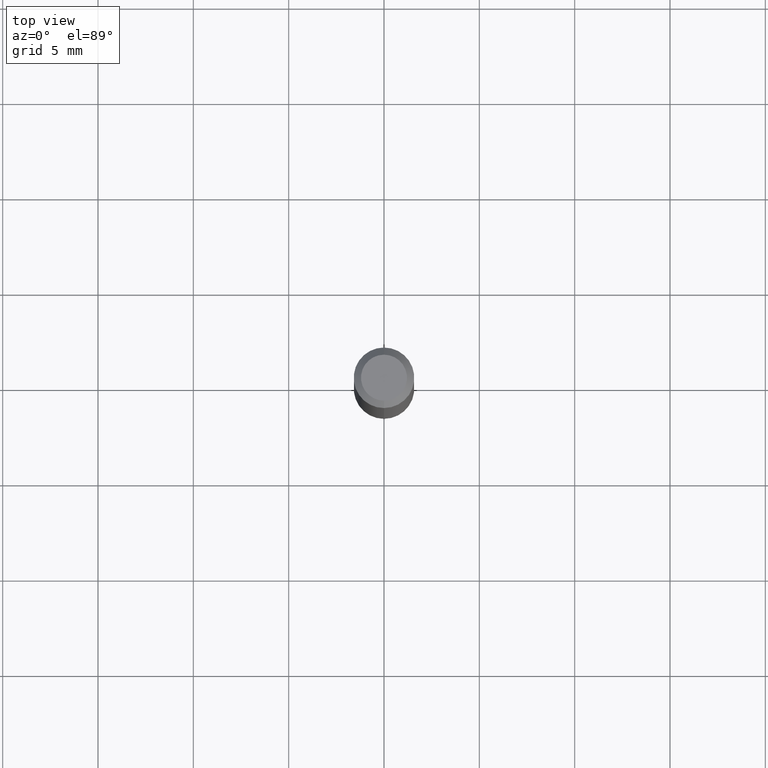
[diagram: clean part render]
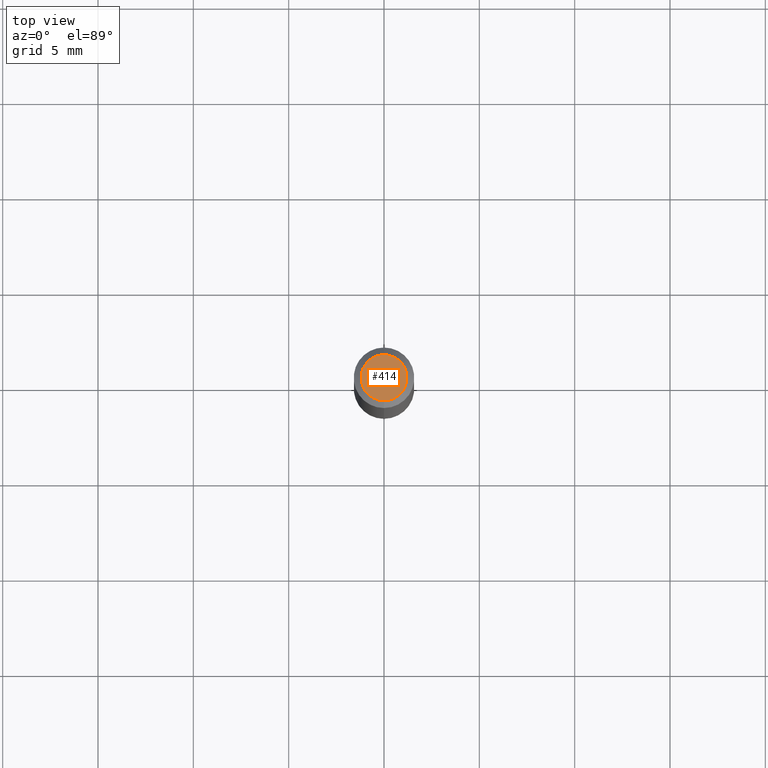
[diagram: same view with one face highlighted and labeled with its STEP entity id]
A machine part, top view. The second image highlights one B-rep face of the part: STEP entity #414.
In plain terms, the highlighted planar face has unit normal (0, -0, -1).
Its self-contained STEP definition (entity closure, byte-faithful):
#22 = CARTESIAN_POINT ( 'NONE',  ( 1.601717240834844103E-45, -2.286884719865626789E-31, -6.549816411302738119E-17 ) ) ;
#36 = CIRCLE ( 'NONE', #460, 0.04749999999999999362 ) ;
#79 = FACE_OUTER_BOUND ( 'NONE', #208, .T. ) ;
#117 = EDGE_CURVE ( 'NONE', #124, #130, #119, .T. ) ;
#119 = CIRCLE ( 'NONE', #261, 0.04749999999999999362 ) ;
#124 = VERTEX_POINT ( 'NONE', #225 ) ;
#130 = VERTEX_POINT ( 'NONE', #187 ) ;
#173 = ORIENTED_EDGE ( 'NONE', *, *, #496, .T. ) ;
#187 = CARTESIAN_POINT ( 'NONE',  ( -3.773273898774340269E-16, -0.04749999999999999362, 1.003492694213908288E-16 ) ) ;
#206 = PLANE ( 'NONE',  #345 ) ;
#208 = EDGE_LOOP ( 'NONE', ( #431, #173 ) ) ;
#225 = CARTESIAN_POINT ( 'NONE',  ( 3.840629472727447874E-16, 0.04749999999999999362, -2.313455976474456035E-16 ) ) ;
#237 = DIRECTION ( 'NONE',  ( -6.982962677686266711E-15, -1.000000000000000000, 3.491524916514068118E-15 ) ) ;
#261 = AXIS2_PLACEMENT_3D ( 'NONE', #22, #488, #455 ) ;
#278 = DIRECTION ( 'NONE',  ( -2.445438376060173173E-29, 3.491524916514068118E-15, 1.000000000000000000 ) ) ;
#303 = CARTESIAN_POINT ( 'NONE',  ( 3.316907271900976096E-16, 0.04749999999999999362, -1.985965155909319314E-16 ) ) ;
#343 = CARTESIAN_POINT ( 'NONE',  ( 1.601717240834844103E-45, -2.286884719865626789E-31, -6.549816411302738119E-17 ) ) ;
#345 = AXIS2_PLACEMENT_3D ( 'NONE', #303, #465, #413 ) ;
#413 = DIRECTION ( 'NONE',  ( 6.982962677686265922E-15, 1.000000000000000000, -3.491524916514068512E-15 ) ) ;
#414 = ADVANCED_FACE ( 'NONE', ( #79 ), #206, .F. ) ;
#431 = ORIENTED_EDGE ( 'NONE', *, *, #117, .T. ) ;
#455 = DIRECTION ( 'NONE',  ( -6.982962677686266711E-15, -1.000000000000000000, 3.491524916514068118E-15 ) ) ;
#460 = AXIS2_PLACEMENT_3D ( 'NONE', #343, #278, #237 ) ;
#465 = DIRECTION ( 'NONE',  ( 2.445438376060172613E-29, -3.491524916514068512E-15, -1.000000000000000000 ) ) ;
#488 = DIRECTION ( 'NONE',  ( -2.445438376060173173E-29, 3.491524916514068118E-15, 1.000000000000000000 ) ) ;
#496 = EDGE_CURVE ( 'NONE', #130, #124, #36, .T. ) ;